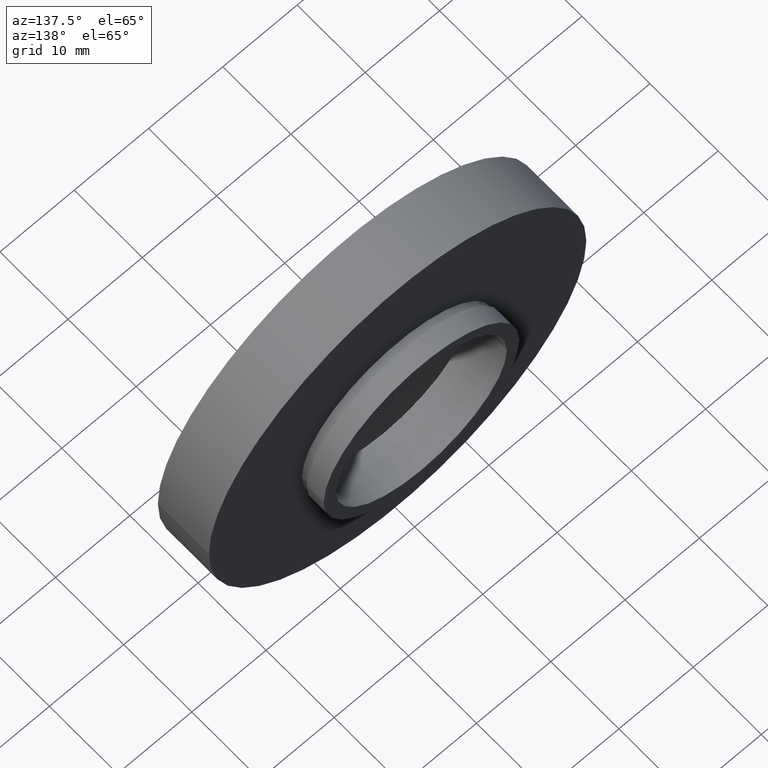
[diagram: clean part render]
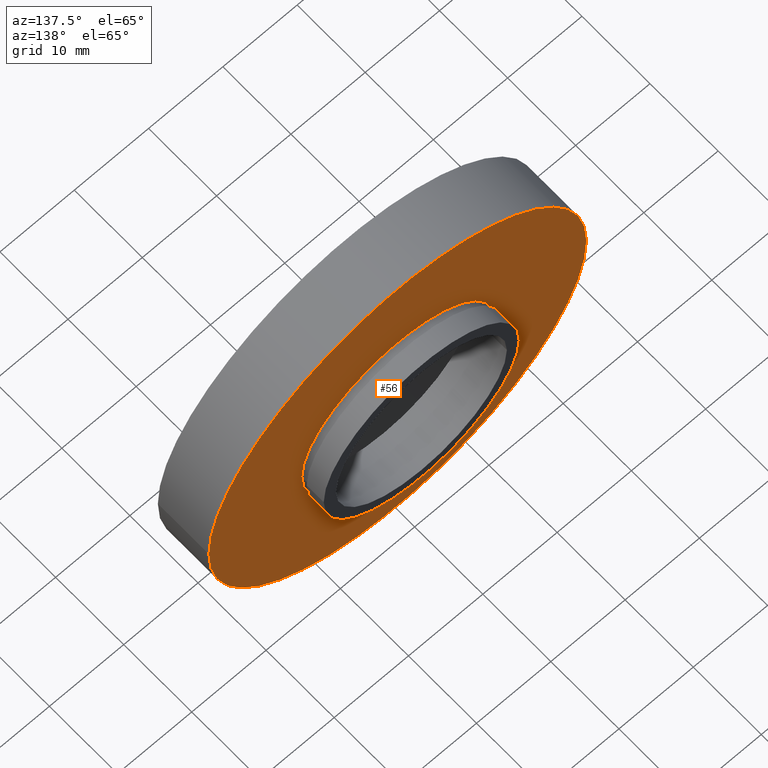
[diagram: same view with one face highlighted and labeled with its STEP entity id]
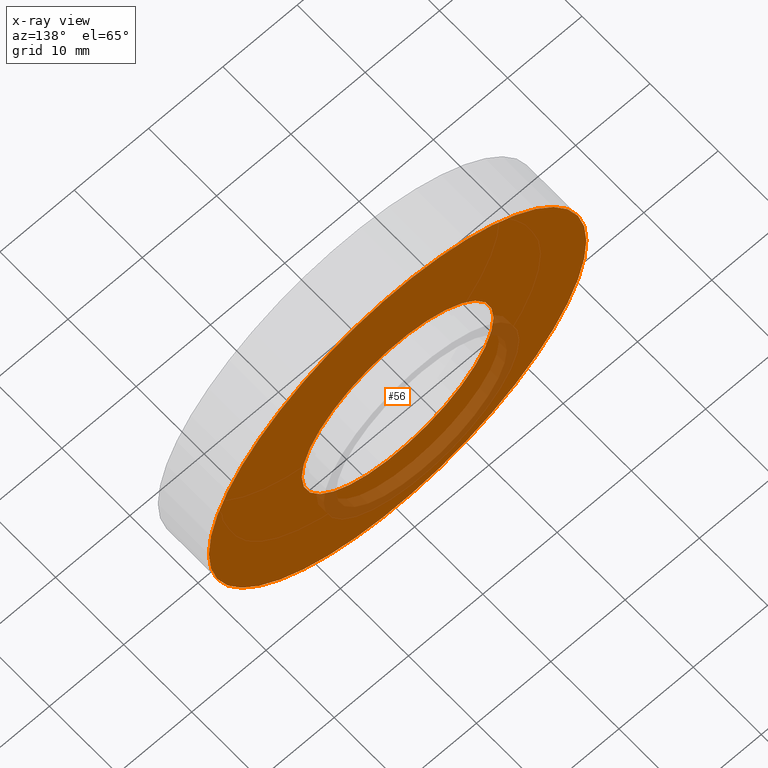
[diagram: x-ray of the same camera — body ghosted, the highlighted face saturated]
A machine part, auxiliary view. The second image highlights one B-rep face of the part: STEP entity #56.
The next image is the same camera in x-ray: the body ghosted, the highlighted face saturated — about 12% of this face is hidden behind the body in this view.
In plain terms, the highlighted planar face has unit normal (0, -1, 0).
Its self-contained STEP definition (entity closure, byte-faithful):
#10 = FACE_BOUND ( 'NONE', #469, .T. ) ;
#16 = CARTESIAN_POINT ( 'NONE',  ( 1.149455719078122700E-015, 7.499999999999998200, 0.0000000000000000000 ) ) ;
#31 = VERTEX_POINT ( 'NONE', #122 ) ;
#43 = AXIS2_PLACEMENT_3D ( 'NONE', #341, #243, #149 ) ;
#49 = DIRECTION ( 'NONE',  ( 1.000000000000000000, 1.224646799147351000E-016, 0.0000000000000000000 ) ) ;
#53 = EDGE_CURVE ( 'NONE', #201, #355, #475, .T. ) ;
#56 = ADVANCED_FACE ( 'NONE', ( #10, #370 ), #211, .F. ) ;
#84 = CIRCLE ( 'NONE', #352, 12.90000000000000000 ) ;
#88 = VERTEX_POINT ( 'NONE', #472 ) ;
#102 = ORIENTED_EDGE ( 'NONE', *, *, #53, .T. ) ;
#122 = CARTESIAN_POINT ( 'NONE',  ( -12.89999999999999900, 7.499999999999996400, 0.0000000000000000000 ) ) ;
#149 = DIRECTION ( 'NONE',  ( -1.000000000000000000, -1.365923996832131600E-016, 0.0000000000000000000 ) ) ;
#176 = CARTESIAN_POINT ( 'NONE',  ( -25.39999999999999900, 7.499999999999992900, 0.0000000000000000000 ) ) ;
#201 = VERTEX_POINT ( 'NONE', #176 ) ;
#211 = PLANE ( 'NONE',  #474 ) ;
#222 = ORIENTED_EDGE ( 'NONE', *, *, #458, .F. ) ;
#240 = EDGE_LOOP ( 'NONE', ( #102, #508 ) ) ;
#243 = DIRECTION ( 'NONE',  ( -1.224646799147351000E-016, 1.000000000000000000, -0.0000000000000000000 ) ) ;
#250 = DIRECTION ( 'NONE',  ( -1.224646799147351000E-016, 1.000000000000000000, -0.0000000000000000000 ) ) ;
#263 = CARTESIAN_POINT ( 'NONE',  ( 1.149455719078123100E-015, 7.499999999999996400, 0.0000000000000000000 ) ) ;
#275 = ORIENTED_EDGE ( 'NONE', *, *, #383, .F. ) ;
#290 = AXIS2_PLACEMENT_3D ( 'NONE', #263, #365, #619 ) ;
#298 = CIRCLE ( 'NONE', #524, 12.90000000000000000 ) ;
#310 = CARTESIAN_POINT ( 'NONE',  ( 1.149455719078122700E-015, 7.499999999999998200, 0.0000000000000000000 ) ) ;
#341 = CARTESIAN_POINT ( 'NONE',  ( 1.149455719078123100E-015, 7.499999999999996400, 0.0000000000000000000 ) ) ;
#344 = EDGE_CURVE ( 'NONE', #355, #201, #506, .T. ) ;
#352 = AXIS2_PLACEMENT_3D ( 'NONE', #310, #413, #609 ) ;
#355 = VERTEX_POINT ( 'NONE', #452 ) ;
#365 = DIRECTION ( 'NONE',  ( -1.224646799147351000E-016, 1.000000000000000000, -0.0000000000000000000 ) ) ;
#370 = FACE_OUTER_BOUND ( 'NONE', #240, .T. ) ;
#383 = EDGE_CURVE ( 'NONE', #31, #88, #298, .T. ) ;
#413 = DIRECTION ( 'NONE',  ( -1.224646799147351000E-016, 1.000000000000000000, -0.0000000000000000000 ) ) ;
#452 = CARTESIAN_POINT ( 'NONE',  ( 25.39999999999999900, 7.500000000000000000, 3.110602869834276900E-015 ) ) ;
#458 = EDGE_CURVE ( 'NONE', #88, #31, #84, .T. ) ;
#469 = EDGE_LOOP ( 'NONE', ( #275, #222 ) ) ;
#472 = CARTESIAN_POINT ( 'NONE',  ( 12.90000000000000200, 7.500000000000000000, 1.579794370900085700E-015 ) ) ;
#474 = AXIS2_PLACEMENT_3D ( 'NONE', #482, #477, #49 ) ;
#475 = CIRCLE ( 'NONE', #290, 25.39999999999999900 ) ;
#477 = DIRECTION ( 'NONE',  ( 1.224646799147351000E-016, -1.000000000000000000, 0.0000000000000000000 ) ) ;
#482 = CARTESIAN_POINT ( 'NONE',  ( 12.90000000000000200, 7.499999999999999100, 0.0000000000000000000 ) ) ;
#506 = CIRCLE ( 'NONE', #43, 25.39999999999999900 ) ;
#508 = ORIENTED_EDGE ( 'NONE', *, *, #344, .T. ) ;
#524 = AXIS2_PLACEMENT_3D ( 'NONE', #16, #250, #546 ) ;
#546 = DIRECTION ( 'NONE',  ( -1.000000000000000000, -1.344746880602176000E-016, 0.0000000000000000000 ) ) ;
#609 = DIRECTION ( 'NONE',  ( -1.000000000000000000, -1.344746880602176000E-016, 0.0000000000000000000 ) ) ;
#619 = DIRECTION ( 'NONE',  ( -1.000000000000000000, -1.365923996832131600E-016, 0.0000000000000000000 ) ) ;